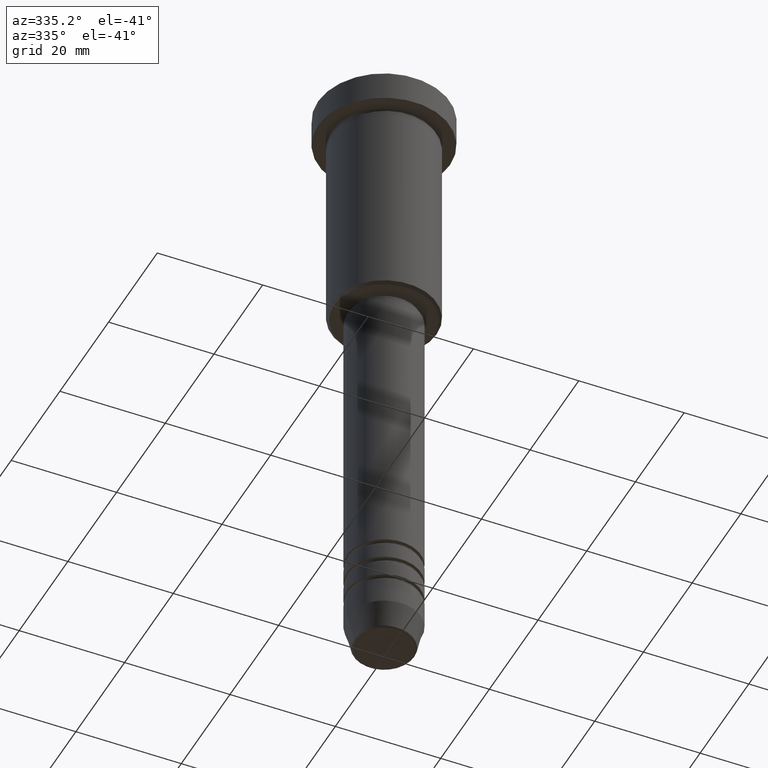
[diagram: clean part render]
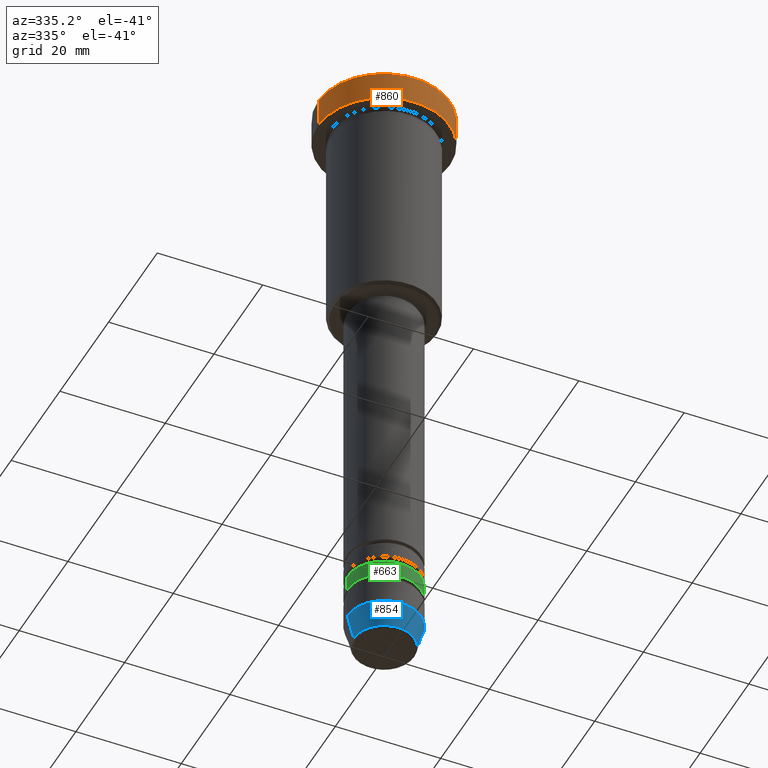
[diagram: same view with three faces highlighted in distinct colors, each labeled with its STEP entity id]
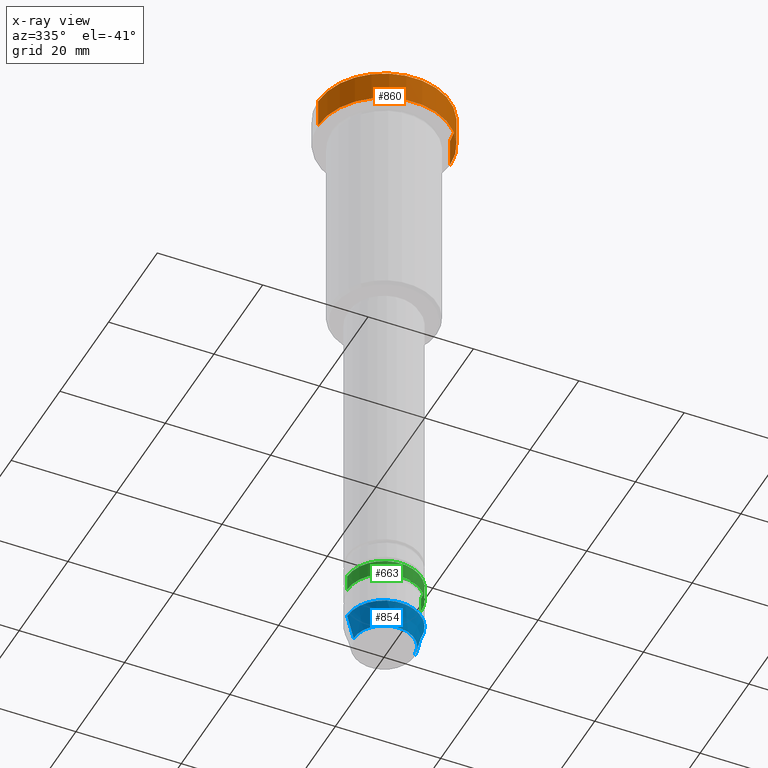
[diagram: x-ray of the same camera — body ghosted, the three highlighted faces saturated]
A machine part, auxiliary view with three faces highlighted in distinct colors.
The next image is the same camera in x-ray (body ghosted, the three faces saturated) — at least one of them is partly hidden behind the body in this view.
Their STEP definitions:

[orange] entity #860 — the highlighted cylindrical surface (partial cylindrical patch) has radius 12.5 mm, axis along (-0, -0, 1).
#11 = DIRECTION ( 'NONE',  ( 1.000000000000000000, 0.000000000000000000, 0.000000000000000000 ) ) ;
#29 = VERTEX_POINT ( 'NONE', #1023 ) ;
#44 = CARTESIAN_POINT ( 'NONE',  ( 0.000000000000000000, 0.000000000000000000, 0.000000000000000000 ) ) ;
#56 = CARTESIAN_POINT ( 'NONE',  ( 12.50000000000000000, 0.000000000000000000, 0.000000000000000000 ) ) ;
#66 = ORIENTED_EDGE ( 'NONE', *, *, #471, .F. ) ;
#151 = CARTESIAN_POINT ( 'NONE',  ( 0.000000000000000000, 0.000000000000000000, -5.999999999999996447 ) ) ;
#192 = AXIS2_PLACEMENT_3D ( 'NONE', #151, #497, #880 ) ;
#193 = AXIS2_PLACEMENT_3D ( 'NONE', #44, #879, #787 ) ;
#326 = ORIENTED_EDGE ( 'NONE', *, *, #685, .T. ) ;
#329 = CARTESIAN_POINT ( 'NONE',  ( 12.50000000000000000, 0.000000000000000000, -0.4999999999999917843 ) ) ;
#381 = EDGE_LOOP ( 'NONE', ( #66, #702, #1069, #326 ) ) ;
#395 = CYLINDRICAL_SURFACE ( 'NONE', #193, 12.50000000000000000 ) ;
#471 = EDGE_CURVE ( 'NONE', #29, #552, #690, .T. ) ;
#486 = VECTOR ( 'NONE', #781, 1000.000000000000000 ) ;
#492 = EDGE_CURVE ( 'NONE', #29, #1107, #706, .T. ) ;
#497 = DIRECTION ( 'NONE',  ( -0.000000000000000000, -0.000000000000000000, 1.000000000000000000 ) ) ;
#500 = VERTEX_POINT ( 'NONE', #329 ) ;
#541 = CARTESIAN_POINT ( 'NONE',  ( 0.000000000000000000, 0.000000000000000000, -0.4999999999999917843 ) ) ;
#552 = VERTEX_POINT ( 'NONE', #626 ) ;
#556 = CARTESIAN_POINT ( 'NONE',  ( 12.50000000000000000, 0.000000000000000000, -5.999999999999996447 ) ) ;
#577 = CARTESIAN_POINT ( 'NONE',  ( -12.50000000000000000, 1.530808498934191521E-15, 0.000000000000000000 ) ) ;
#596 = DIRECTION ( 'NONE',  ( -0.000000000000000000, -0.000000000000000000, 1.000000000000000000 ) ) ;
#626 = CARTESIAN_POINT ( 'NONE',  ( -12.50000000000000000, 1.530808498934191521E-15, -0.4999999999999917843 ) ) ;
#685 = EDGE_CURVE ( 'NONE', #500, #552, #1101, .T. ) ;
#690 = LINE ( 'NONE', #577, #1061 ) ;
#702 = ORIENTED_EDGE ( 'NONE', *, *, #492, .T. ) ;
#706 = CIRCLE ( 'NONE', #192, 12.50000000000000000 ) ;
#781 = DIRECTION ( 'NONE',  ( -0.000000000000000000, -0.000000000000000000, 1.000000000000000000 ) ) ;
#787 = DIRECTION ( 'NONE',  ( 1.000000000000000000, 0.000000000000000000, 0.000000000000000000 ) ) ;
#859 = FACE_OUTER_BOUND ( 'NONE', #381, .T. ) ;
#860 = ADVANCED_FACE ( 'NONE', ( #859 ), #395, .T. ) ;
#873 = LINE ( 'NONE', #56, #486 ) ;
#877 = EDGE_CURVE ( 'NONE', #1107, #500, #873, .T. ) ;
#879 = DIRECTION ( 'NONE',  ( -0.000000000000000000, -0.000000000000000000, 1.000000000000000000 ) ) ;
#880 = DIRECTION ( 'NONE',  ( 1.000000000000000000, 0.000000000000000000, 0.000000000000000000 ) ) ;
#924 = AXIS2_PLACEMENT_3D ( 'NONE', #541, #1017, #11 ) ;
#1017 = DIRECTION ( 'NONE',  ( 0.000000000000000000, 0.000000000000000000, -1.000000000000000000 ) ) ;
#1023 = CARTESIAN_POINT ( 'NONE',  ( -12.50000000000000000, 1.530808498934191521E-15, -5.999999999999996447 ) ) ;
#1061 = VECTOR ( 'NONE', #596, 1000.000000000000000 ) ;
#1069 = ORIENTED_EDGE ( 'NONE', *, *, #877, .T. ) ;
#1101 = CIRCLE ( 'NONE', #924, 12.50000000000000000 ) ;
#1107 = VERTEX_POINT ( 'NONE', #556 ) ;

[blue] entity #854 — the highlighted conical surface has half-angle 15 deg.
#57 = CARTESIAN_POINT ( 'NONE',  ( -7.000000000000000000, 8.572527594031473190E-16, -116.0000000000000000 ) ) ;
#90 = DIRECTION ( 'NONE',  ( 1.000000000000000000, 0.000000000000000000, 0.000000000000000000 ) ) ;
#119 = VERTEX_POINT ( 'NONE', #677 ) ;
#131 = EDGE_CURVE ( 'NONE', #200, #119, #140, .T. ) ;
#132 = DIRECTION ( 'NONE',  ( 1.000000000000000000, 0.000000000000000000, 0.000000000000000000 ) ) ;
#140 = LINE ( 'NONE', #1049, #503 ) ;
#159 = CIRCLE ( 'NONE', #465, 5.759553456999443988 ) ;
#168 = CARTESIAN_POINT ( 'NONE',  ( 0.000000000000000000, 0.000000000000000000, -116.0000000000000000 ) ) ;
#200 = VERTEX_POINT ( 'NONE', #300 ) ;
#213 = CARTESIAN_POINT ( 'NONE',  ( -5.759553456999443988, 7.812973149831957689E-16, -120.6294095225512422 ) ) ;
#222 = FACE_OUTER_BOUND ( 'NONE', #535, .T. ) ;
#289 = VERTEX_POINT ( 'NONE', #213 ) ;
#300 = CARTESIAN_POINT ( 'NONE',  ( 5.759553456999443988, 0.000000000000000000, -120.6294095225512422 ) ) ;
#325 = AXIS2_PLACEMENT_3D ( 'NONE', #168, #909, #90 ) ;
#340 = EDGE_CURVE ( 'NONE', #289, #200, #159, .T. ) ;
#457 = CARTESIAN_POINT ( 'NONE',  ( -7.000000000000000000, 8.572527594031473190E-16, -116.0000000000000000 ) ) ;
#458 = VERTEX_POINT ( 'NONE', #57 ) ;
#465 = AXIS2_PLACEMENT_3D ( 'NONE', #566, #942, #850 ) ;
#490 = CARTESIAN_POINT ( 'NONE',  ( 0.000000000000000000, 0.000000000000000000, -116.0000000000000000 ) ) ;
#503 = VECTOR ( 'NONE', #593, 1000.000000000000000 ) ;
#535 = EDGE_LOOP ( 'NONE', ( #1181, #716, #837, #1094 ) ) ;
#566 = CARTESIAN_POINT ( 'NONE',  ( 0.000000000000000000, 0.000000000000000000, -120.6294095225512422 ) ) ;
#567 = EDGE_CURVE ( 'NONE', #458, #119, #903, .T. ) ;
#593 = DIRECTION ( 'NONE',  ( 0.2588190451025213501, 0.000000000000000000, 0.9659258262890680902 ) ) ;
#609 = AXIS2_PLACEMENT_3D ( 'NONE', #490, #954, #132 ) ;
#677 = CARTESIAN_POINT ( 'NONE',  ( 7.000000000000000000, 0.000000000000000000, -116.0000000000000000 ) ) ;
#707 = CONICAL_SURFACE ( 'NONE', #609, 7.000000000000000000, 0.2617993877991500740 ) ;
#716 = ORIENTED_EDGE ( 'NONE', *, *, #340, .T. ) ;
#837 = ORIENTED_EDGE ( 'NONE', *, *, #131, .T. ) ;
#839 = DIRECTION ( 'NONE',  ( -0.2588190451025213501, 3.169619151431772337E-17, 0.9659258262890680902 ) ) ;
#850 = DIRECTION ( 'NONE',  ( 1.000000000000000000, 0.000000000000000000, 0.000000000000000000 ) ) ;
#854 = ADVANCED_FACE ( 'NONE', ( #222 ), #707, .T. ) ;
#903 = CIRCLE ( 'NONE', #325, 7.000000000000000000 ) ;
#909 = DIRECTION ( 'NONE',  ( -0.000000000000000000, -0.000000000000000000, 1.000000000000000000 ) ) ;
#933 = LINE ( 'NONE', #457, #1171 ) ;
#942 = DIRECTION ( 'NONE',  ( -0.000000000000000000, -0.000000000000000000, 1.000000000000000000 ) ) ;
#954 = DIRECTION ( 'NONE',  ( -0.000000000000000000, -0.000000000000000000, 1.000000000000000000 ) ) ;
#1049 = CARTESIAN_POINT ( 'NONE',  ( 7.000000000000000000, 0.000000000000000000, -116.0000000000000000 ) ) ;
#1094 = ORIENTED_EDGE ( 'NONE', *, *, #567, .F. ) ;
#1163 = EDGE_CURVE ( 'NONE', #289, #458, #933, .T. ) ;
#1171 = VECTOR ( 'NONE', #839, 1000.000000000000000 ) ;
#1181 = ORIENTED_EDGE ( 'NONE', *, *, #1163, .F. ) ;

[green] entity #663 — the highlighted cylindrical surface (partial cylindrical patch) has radius 7 mm, axis along (-0, -0, 1).
#20 = CARTESIAN_POINT ( 'NONE',  ( 7.000000000000000888, 0.000000000000000000, 0.000000000000000000 ) ) ;
#103 = AXIS2_PLACEMENT_3D ( 'NONE', #447, #557, #186 ) ;
#113 = VERTEX_POINT ( 'NONE', #475 ) ;
#139 = AXIS2_PLACEMENT_3D ( 'NONE', #502, #412, #789 ) ;
#186 = DIRECTION ( 'NONE',  ( 1.000000000000000000, 0.000000000000000000, 0.000000000000000000 ) ) ;
#219 = DIRECTION ( 'NONE',  ( -0.000000000000000000, -0.000000000000000000, 1.000000000000000000 ) ) ;
#232 = CIRCLE ( 'NONE', #139, 7.000000000000000888 ) ;
#250 = EDGE_CURVE ( 'NONE', #537, #639, #276, .T. ) ;
#256 = CARTESIAN_POINT ( 'NONE',  ( 7.000000000000000888, 0.000000000000000000, -109.9999999999998863 ) ) ;
#258 = VERTEX_POINT ( 'NONE', #664 ) ;
#276 = LINE ( 'NONE', #20, #544 ) ;
#295 = ORIENTED_EDGE ( 'NONE', *, *, #618, .F. ) ;
#355 = DIRECTION ( 'NONE',  ( -0.000000000000000000, -0.000000000000000000, 1.000000000000000000 ) ) ;
#377 = CIRCLE ( 'NONE', #103, 7.000000000000000000 ) ;
#385 = FACE_OUTER_BOUND ( 'NONE', #912, .T. ) ;
#406 = CARTESIAN_POINT ( 'NONE',  ( -7.000000000000000888, 8.572527594031474176E-16, 0.000000000000000000 ) ) ;
#412 = DIRECTION ( 'NONE',  ( -0.000000000000000000, -0.000000000000000000, 1.000000000000000000 ) ) ;
#415 = AXIS2_PLACEMENT_3D ( 'NONE', #1039, #355, #1130 ) ;
#447 = CARTESIAN_POINT ( 'NONE',  ( 0.000000000000000000, 0.000000000000000000, -106.9999999999999005 ) ) ;
#451 = ORIENTED_EDGE ( 'NONE', *, *, #462, .F. ) ;
#462 = EDGE_CURVE ( 'NONE', #258, #113, #1164, .T. ) ;
#475 = CARTESIAN_POINT ( 'NONE',  ( -7.000000000000000000, 8.572527594031473190E-16, -106.9999999999999005 ) ) ;
#499 = EDGE_CURVE ( 'NONE', #258, #537, #232, .T. ) ;
#502 = CARTESIAN_POINT ( 'NONE',  ( 0.000000000000000000, 0.000000000000000000, -109.9999999999998863 ) ) ;
#537 = VERTEX_POINT ( 'NONE', #256 ) ;
#544 = VECTOR ( 'NONE', #936, 1000.000000000000000 ) ;
#557 = DIRECTION ( 'NONE',  ( -0.000000000000000000, -0.000000000000000000, 1.000000000000000000 ) ) ;
#618 = EDGE_CURVE ( 'NONE', #113, #639, #377, .T. ) ;
#639 = VERTEX_POINT ( 'NONE', #1026 ) ;
#663 = ADVANCED_FACE ( 'NONE', ( #385 ), #754, .T. ) ;
#664 = CARTESIAN_POINT ( 'NONE',  ( -7.000000000000000888, 8.572527594031474176E-16, -109.9999999999998863 ) ) ;
#712 = ORIENTED_EDGE ( 'NONE', *, *, #250, .T. ) ;
#754 = CYLINDRICAL_SURFACE ( 'NONE', #415, 7.000000000000000888 ) ;
#789 = DIRECTION ( 'NONE',  ( 1.000000000000000000, 0.000000000000000000, 0.000000000000000000 ) ) ;
#797 = ORIENTED_EDGE ( 'NONE', *, *, #499, .T. ) ;
#912 = EDGE_LOOP ( 'NONE', ( #451, #797, #712, #295 ) ) ;
#936 = DIRECTION ( 'NONE',  ( -0.000000000000000000, -0.000000000000000000, 1.000000000000000000 ) ) ;
#1026 = CARTESIAN_POINT ( 'NONE',  ( 7.000000000000000000, 0.000000000000000000, -106.9999999999999005 ) ) ;
#1039 = CARTESIAN_POINT ( 'NONE',  ( 0.000000000000000000, 0.000000000000000000, 0.000000000000000000 ) ) ;
#1081 = VECTOR ( 'NONE', #219, 1000.000000000000000 ) ;
#1130 = DIRECTION ( 'NONE',  ( 1.000000000000000000, 0.000000000000000000, 0.000000000000000000 ) ) ;
#1164 = LINE ( 'NONE', #406, #1081 ) ;